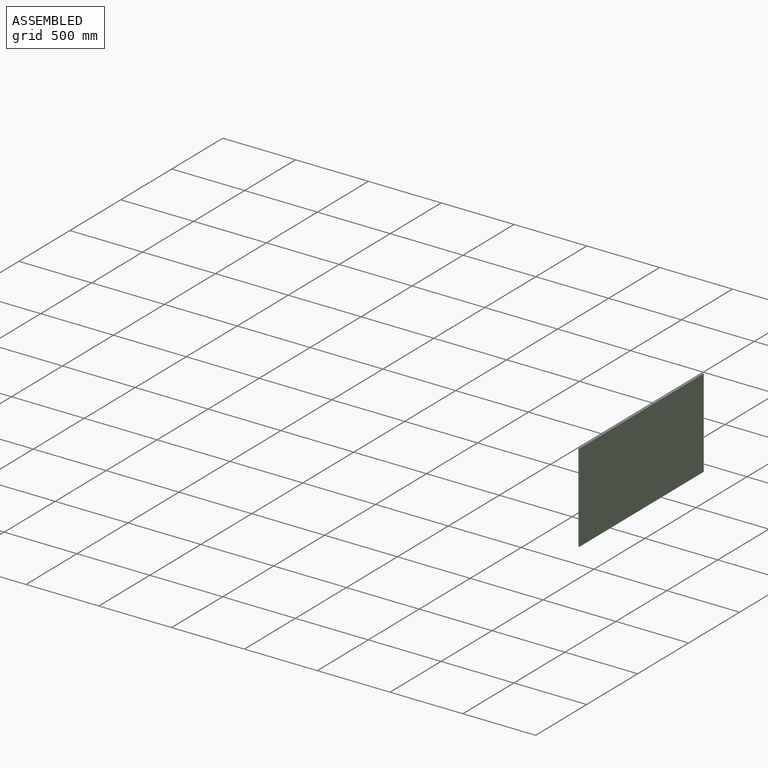
[diagram: assembled view]
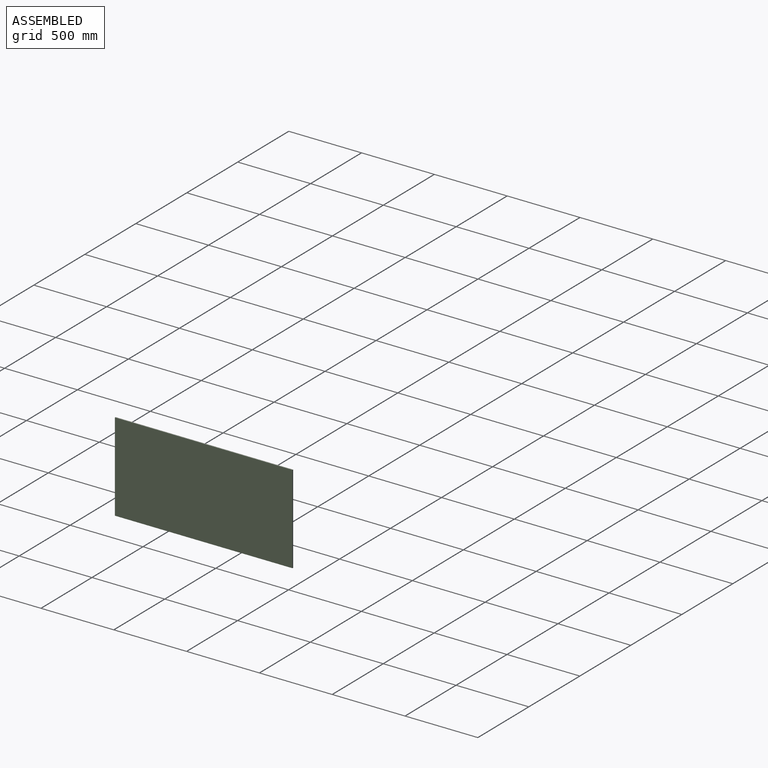
[diagram: assembled view, second angle]
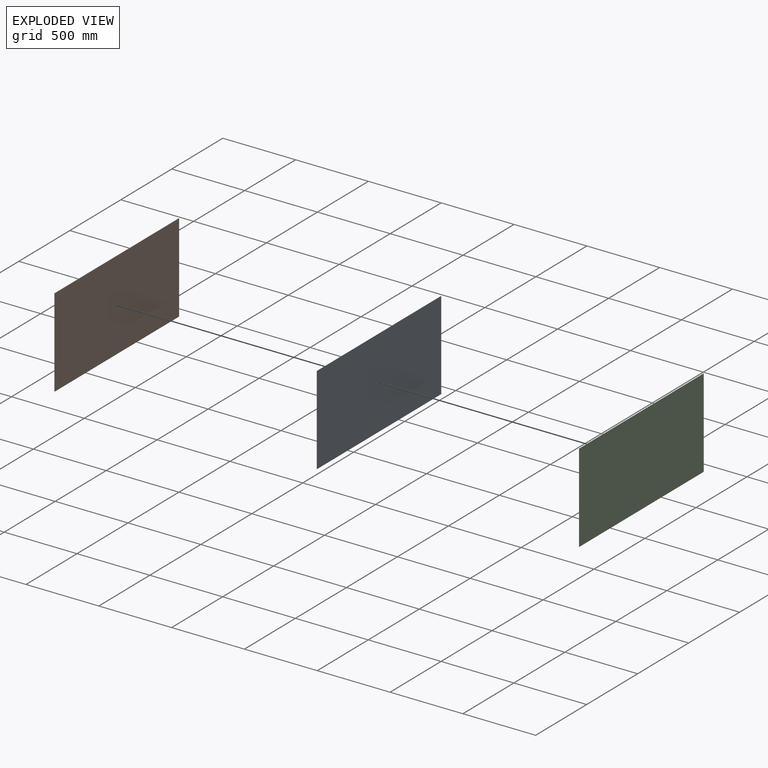
[diagram: exploded view]
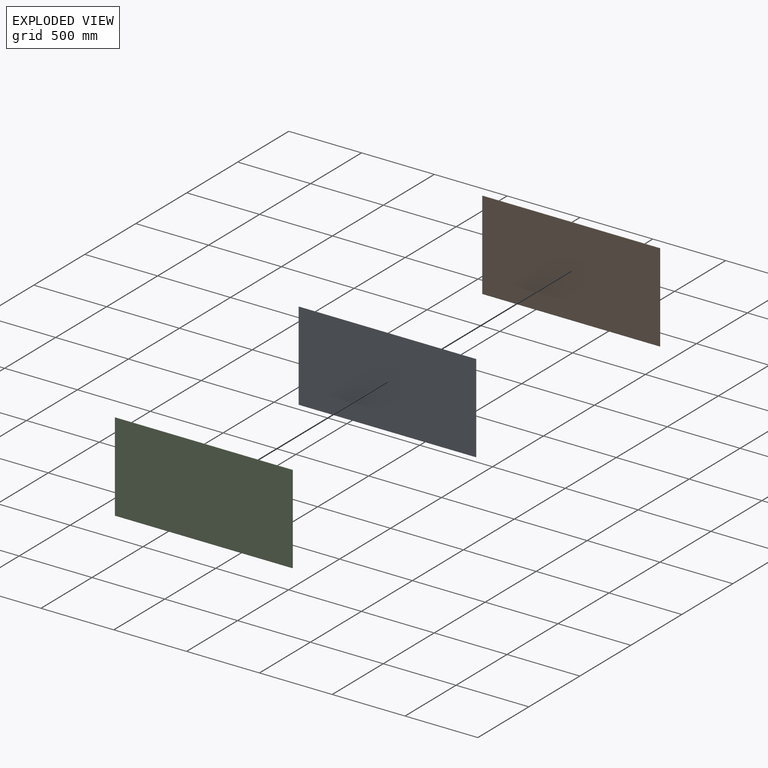
[diagram: exploded view, second angle]
ASSEMBLY  parts=3 mates=2
PART A: 6 faces, bbox 0.9x1219.2x609.6 mm
  f0: plane 1219.2x0.89mm, normal (0,0,1), area 1083.9mm2, adj f1,f3,f4,f5
  f1: plane 609.6x0.89mm, normal (0,-1,0), area 541.9mm2, adj f0,f2,f4,f5
  f2: plane 1219.2x0.89mm, normal (0,0,-1), area 1083.9mm2, adj f1,f3,f4,f5
  f3: plane 609.6x0.89mm, normal (0,1,0), area 541.9mm2, adj f0,f2,f4,f5
  f4: plane 1219.2x609.6mm, normal (1,0,0), area 743224.3mm2, adj f0,f1,f2,f3
  f5: plane 1219.2x609.6mm, normal (-1,0,0), area 743224.3mm2, adj f0,f1,f2,f3
PART B: 6 faces, bbox 3x1219.2x609.6 mm
  f0: plane 609.6x3mm, normal (0,1,0), area 1827.1mm2, adj f1,f3,f4,f5
  f1: plane 1219.2x3mm, normal (0,0,1), area 3654.2mm2, adj f0,f2,f4,f5
  f2: plane 609.6x3mm, normal (0,-1,0), area 1827.1mm2, adj f1,f3,f4,f5
  f3: plane 1219.2x3mm, normal (0,0,-1), area 3654.2mm2, adj f0,f2,f4,f5
  f4: plane 1219.2x609.6mm, normal (1,0,0), area 743224.3mm2, adj f0,f1,f2,f3
  f5: plane 1219.2x609.6mm, normal (-1,0,0), area 743224.3mm2, adj f0,f1,f2,f3
PART C: same geometry as B
PLACE A t=(784.43,1157.8,-461.83)mm
PLACE B t=(781.44,1320.97,426.54)mm
PLACE C t=(785.32,1320.97,426.54)mm
MATE fastened B.f4 <-> A.f5  axis (1,0,0) through (784.43,268.88,62.36)mm
MATE fastened A.f4 <-> C.f5  axis (1,0,0) through (785.32,268.88,62.36)mm
